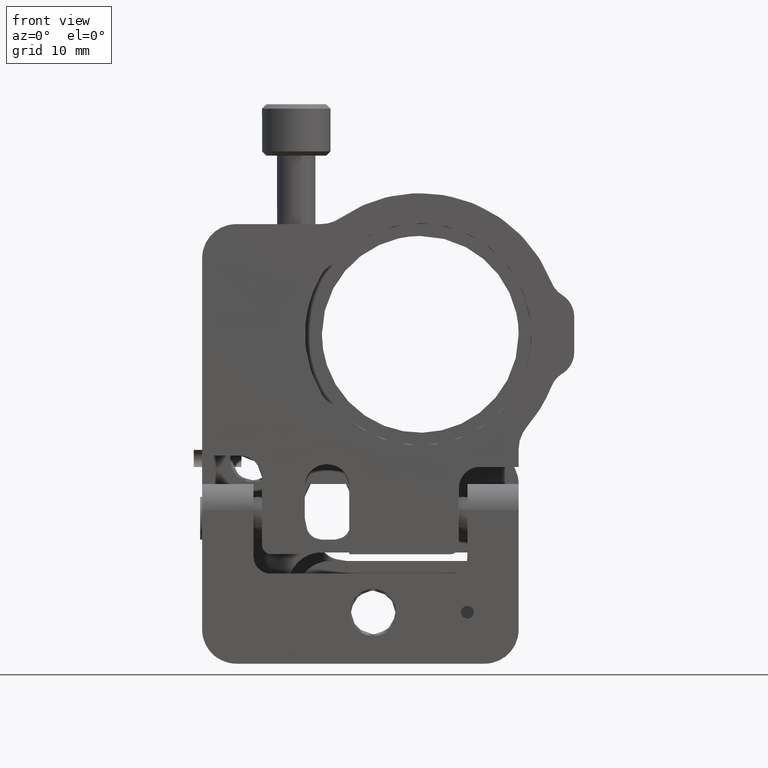
[diagram: clean part render]
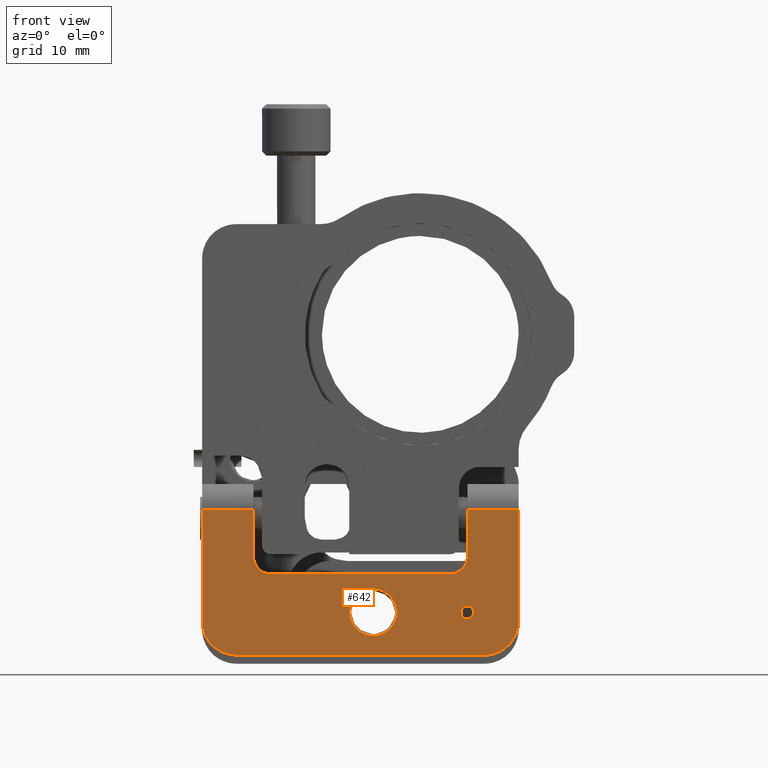
[diagram: same view with one face highlighted and labeled with its STEP entity id]
A machine part, front view. The second image highlights one B-rep face of the part: STEP entity #642.
In plain terms, the highlighted face is a freeform B-spline surface patch.
Its self-contained STEP definition (entity closure, byte-faithful):
#434=FACE_BOUND('',#1576,.T.);
#435=FACE_BOUND('',#1577,.T.);
#642=ADVANCED_FACE('',(#1089,#434,#435),#15901,.T.);
#1089=FACE_OUTER_BOUND('',#1575,.T.);
#1575=EDGE_LOOP('',(#2898,#2899,#2900,#2901,#2902,#2903,#2904,#2905,#2906,
#2907,#2908,#2909));
#1576=EDGE_LOOP('',(#2910,#2911));
#1577=EDGE_LOOP('',(#2912,#2913));
#2898=ORIENTED_EDGE('',*,*,#12954,.F.);
#2899=ORIENTED_EDGE('',*,*,#12952,.F.);
#2900=ORIENTED_EDGE('',*,*,#13014,.F.);
#2901=ORIENTED_EDGE('',*,*,#13016,.F.);
#2902=ORIENTED_EDGE('',*,*,#13011,.F.);
#2903=ORIENTED_EDGE('',*,*,#13017,.F.);
#2904=ORIENTED_EDGE('',*,*,#12854,.F.);
#2905=ORIENTED_EDGE('',*,*,#12988,.F.);
#2906=ORIENTED_EDGE('',*,*,#12960,.F.);
#2907=ORIENTED_EDGE('',*,*,#12987,.F.);
#2908=ORIENTED_EDGE('',*,*,#13021,.F.);
#2909=ORIENTED_EDGE('',*,*,#13018,.F.);
#2910=ORIENTED_EDGE('',*,*,#12750,.F.);
#2911=ORIENTED_EDGE('',*,*,#12748,.F.);
#2912=ORIENTED_EDGE('',*,*,#12906,.F.);
#2913=ORIENTED_EDGE('',*,*,#12903,.F.);
#4734=PCURVE('',#16041,#7108);
#4736=PCURVE('',#16042,#7110);
#4871=PCURVE('',#15877,#7245);
#4974=PCURVE('',#16069,#7348);
#4978=PCURVE('',#16070,#7352);
#5052=PCURVE('',#16078,#7426);
#5057=PCURVE('',#15888,#7431);
#5065=PCURVE('',#15889,#7439);
#5134=PCURVE('',#16081,#7508);
#5138=PCURVE('',#16082,#7512);
#5205=PCURVE('',#15895,#7579);
#5214=PCURVE('',#15896,#7588);
#5219=PCURVE('',#16091,#7593);
#5225=PCURVE('',#16092,#7599);
#5227=PCURVE('',#16093,#7601);
#5235=PCURVE('',#15897,#7609);
#5272=PCURVE('',#15901,#7646);
#5273=PCURVE('',#15901,#7647);
#5274=PCURVE('',#15901,#7648);
#5275=PCURVE('',#15901,#7649);
#5276=PCURVE('',#15901,#7650);
#5277=PCURVE('',#15901,#7651);
#5278=PCURVE('',#15901,#7652);
#5279=PCURVE('',#15901,#7653);
#5280=PCURVE('',#15901,#7654);
#5281=PCURVE('',#15901,#7655);
#5282=PCURVE('',#15901,#7656);
#5283=PCURVE('',#15901,#7657);
#5284=PCURVE('',#15901,#7658);
#5285=PCURVE('',#15901,#7659);
#5286=PCURVE('',#15901,#7660);
#5287=PCURVE('',#15901,#7661);
#7108=DEFINITIONAL_REPRESENTATION('',(#9452),#34671);
#7110=DEFINITIONAL_REPRESENTATION('',(#9454),#34671);
#7245=DEFINITIONAL_REPRESENTATION('',(#9625),#34671);
#7348=DEFINITIONAL_REPRESENTATION('',(#9735),#34671);
#7352=DEFINITIONAL_REPRESENTATION('',(#9740),#34671);
#7426=DEFINITIONAL_REPRESENTATION('',(#9812),#34671);
#7431=DEFINITIONAL_REPRESENTATION('',(#9818),#34671);
#7439=DEFINITIONAL_REPRESENTATION('',(#9826),#34671);
#7508=DEFINITIONAL_REPRESENTATION('',(#9871),#34671);
#7512=DEFINITIONAL_REPRESENTATION('',(#9875),#34671);
#7579=DEFINITIONAL_REPRESENTATION('',(#9932),#34671);
#7588=DEFINITIONAL_REPRESENTATION('',(#9942),#34671);
#7593=DEFINITIONAL_REPRESENTATION('',(#9945),#34671);
#7599=DEFINITIONAL_REPRESENTATION('',(#9952),#34671);
#7601=DEFINITIONAL_REPRESENTATION('',(#9954),#34671);
#7609=DEFINITIONAL_REPRESENTATION('',(#9963),#34671);
#7646=DEFINITIONAL_REPRESENTATION('',(#10002),#34671);
#7647=DEFINITIONAL_REPRESENTATION('',(#14260),#34671);
#7648=DEFINITIONAL_REPRESENTATION('',(#10003),#34671);
#7649=DEFINITIONAL_REPRESENTATION('',(#14261),#34671);
#7650=DEFINITIONAL_REPRESENTATION('',(#10004),#34671);
#7651=DEFINITIONAL_REPRESENTATION('',(#10005),#34671);
#7652=DEFINITIONAL_REPRESENTATION('',(#10006),#34671);
#7653=DEFINITIONAL_REPRESENTATION('',(#14262),#34671);
#7654=DEFINITIONAL_REPRESENTATION('',(#10007),#34671);
#7655=DEFINITIONAL_REPRESENTATION('',(#14263),#34671);
#7656=DEFINITIONAL_REPRESENTATION('',(#10008),#34671);
#7657=DEFINITIONAL_REPRESENTATION('',(#10009),#34671);
#7658=DEFINITIONAL_REPRESENTATION('',(#14264),#34671);
#7659=DEFINITIONAL_REPRESENTATION('',(#14265),#34671);
#7660=DEFINITIONAL_REPRESENTATION('',(#14266),#34671);
#7661=DEFINITIONAL_REPRESENTATION('',(#14267),#34671);
#9452=B_SPLINE_CURVE_WITH_KNOTS('',1,(#21227,#21228),.UNSPECIFIED.,.F.,
 .F.,(2,2),(0.,2.35619449019234),.UNSPECIFIED.);
#9454=B_SPLINE_CURVE_WITH_KNOTS('',1,(#21238,#21239),.UNSPECIFIED.,.F.,
 .F.,(2,2),(2.35619449019234,4.71238898038469),.UNSPECIFIED.);
#9624=B_SPLINE_CURVE_WITH_KNOTS('',1,(#21976,#21977),.UNSPECIFIED.,.F.,
 .F.,(2,2),(0.,13.),.UNSPECIFIED.);
#9625=B_SPLINE_CURVE_WITH_KNOTS('',1,(#21978,#21979),.UNSPECIFIED.,.F.,
 .F.,(2,2),(0.,13.),.UNSPECIFIED.);
#9735=B_SPLINE_CURVE_WITH_KNOTS('',1,(#22547,#22548),.UNSPECIFIED.,.F.,
 .F.,(2,2),(0.,8.63937979737193),.UNSPECIFIED.);
#9740=B_SPLINE_CURVE_WITH_KNOTS('',1,(#22602,#22603),.UNSPECIFIED.,.F.,
 .F.,(2,2),(8.63937979737193,17.2787595947439),.UNSPECIFIED.);
#9812=B_SPLINE_CURVE_WITH_KNOTS('',1,(#22962,#22963),.UNSPECIFIED.,.F.,
 .F.,(2,2),(0.,3.14159265358979),.UNSPECIFIED.);
#9817=B_SPLINE_CURVE_WITH_KNOTS('',1,(#22974,#22975),.UNSPECIFIED.,.F.,
 .F.,(2,2),(0.,5.49999999999997),.UNSPECIFIED.);
#9818=B_SPLINE_CURVE_WITH_KNOTS('',1,(#22976,#22977),.UNSPECIFIED.,.F.,
 .F.,(2,2),(0.,5.49999999999997),.UNSPECIFIED.);
#9825=B_SPLINE_CURVE_WITH_KNOTS('',1,(#23016,#23017),.UNSPECIFIED.,.F.,
 .F.,(2,2),(0.,28.9999999999997),.UNSPECIFIED.);
#9826=B_SPLINE_CURVE_WITH_KNOTS('',1,(#23018,#23019),.UNSPECIFIED.,.F.,
 .F.,(2,2),(0.,28.9999999999997),.UNSPECIFIED.);
#9871=B_SPLINE_CURVE_WITH_KNOTS('',1,(#23278,#23279),.UNSPECIFIED.,.F.,
 .F.,(2,2),(0.,6.28318530717959),.UNSPECIFIED.);
#9875=B_SPLINE_CURVE_WITH_KNOTS('',1,(#23289,#23290),.UNSPECIFIED.,.F.,
 .F.,(2,2),(0.,6.28318530717959),.UNSPECIFIED.);
#9931=B_SPLINE_CURVE_WITH_KNOTS('',1,(#23568,#23569),.UNSPECIFIED.,.F.,
 .F.,(2,2),(0.,5.49999999999996),.UNSPECIFIED.);
#9932=B_SPLINE_CURVE_WITH_KNOTS('',1,(#23570,#23571),.UNSPECIFIED.,.F.,
 .F.,(2,2),(0.,5.49999999999996),.UNSPECIFIED.);
#9941=B_SPLINE_CURVE_WITH_KNOTS('',1,(#23598,#23599),.UNSPECIFIED.,.F.,
 .F.,(2,2),(0.,20.9999999999997),.UNSPECIFIED.);
#9942=B_SPLINE_CURVE_WITH_KNOTS('',1,(#23600,#23601),.UNSPECIFIED.,.F.,
 .F.,(2,2),(0.,20.9999999999997),.UNSPECIFIED.);
#9945=B_SPLINE_CURVE_WITH_KNOTS('',1,(#23624,#23625),.UNSPECIFIED.,.F.,
 .F.,(2,2),(0.,3.14159265358979),.UNSPECIFIED.);
#9951=B_SPLINE_CURVE_WITH_KNOTS('',1,(#23636,#23637),.UNSPECIFIED.,.F.,
 .F.,(2,2),(-6.,0.),.UNSPECIFIED.);
#9952=B_SPLINE_CURVE_WITH_KNOTS('',1,(#23638,#23639),.UNSPECIFIED.,.F.,
 .F.,(2,2),(-6.,0.),.UNSPECIFIED.);
#9954=B_SPLINE_CURVE_WITH_KNOTS('',1,(#23644,#23645),.UNSPECIFIED.,.F.,
 .F.,(2,2),(-6.,0.),.UNSPECIFIED.);
#9962=B_SPLINE_CURVE_WITH_KNOTS('',1,(#23666,#23667),.UNSPECIFIED.,.F.,
 .F.,(2,2),(0.,13.),.UNSPECIFIED.);
#9963=B_SPLINE_CURVE_WITH_KNOTS('',1,(#23668,#23669),.UNSPECIFIED.,.F.,
 .F.,(2,2),(0.,13.),.UNSPECIFIED.);
#10002=B_SPLINE_CURVE_WITH_KNOTS('',1,(#23760,#23761),.UNSPECIFIED.,.F.,
 .F.,(2,2),(0.,5.49999999999997),.UNSPECIFIED.);
#10003=B_SPLINE_CURVE_WITH_KNOTS('',1,(#23765,#23766),.UNSPECIFIED.,.F.,
 .F.,(2,2),(0.,20.9999999999997),.UNSPECIFIED.);
#10004=B_SPLINE_CURVE_WITH_KNOTS('',1,(#23770,#23771),.UNSPECIFIED.,.F.,
 .F.,(2,2),(0.,5.49999999999996),.UNSPECIFIED.);
#10005=B_SPLINE_CURVE_WITH_KNOTS('',1,(#23772,#23773),.UNSPECIFIED.,.F.,
 .F.,(2,2),(-6.,0.),.UNSPECIFIED.);
#10006=B_SPLINE_CURVE_WITH_KNOTS('',1,(#23774,#23775),.UNSPECIFIED.,.F.,
 .F.,(2,2),(0.,13.),.UNSPECIFIED.);
#10007=B_SPLINE_CURVE_WITH_KNOTS('',1,(#23779,#23780),.UNSPECIFIED.,.F.,
 .F.,(2,2),(0.,28.9999999999997),.UNSPECIFIED.);
#10008=B_SPLINE_CURVE_WITH_KNOTS('',1,(#23784,#23785),.UNSPECIFIED.,.F.,
 .F.,(2,2),(0.,13.),.UNSPECIFIED.);
#10009=B_SPLINE_CURVE_WITH_KNOTS('',1,(#23786,#23787),.UNSPECIFIED.,.F.,
 .F.,(2,2),(-6.,0.),.UNSPECIFIED.);
#11534=SURFACE_CURVE('',#13992,(#4734,#5285),.PCURVE_S1.);
#11536=SURFACE_CURVE('',#13994,(#4736,#5284),.PCURVE_S1.);
#11640=SURFACE_CURVE('',#9624,(#4871,#5278),.PCURVE_S1.);
#11689=SURFACE_CURVE('',#14104,(#4974,#5287),.PCURVE_S1.);
#11692=SURFACE_CURVE('',#14106,(#4978,#5286),.PCURVE_S1.);
#11738=SURFACE_CURVE('',#14154,(#5052,#5273),.PCURVE_S1.);
#11740=SURFACE_CURVE('',#9817,(#5057,#5272),.PCURVE_S1.);
#11746=SURFACE_CURVE('',#9825,(#5065,#5280),.PCURVE_S1.);
#11773=SURFACE_CURVE('',#14212,(#5134,#5281),.PCURVE_S1.);
#11774=SURFACE_CURVE('',#14213,(#5138,#5279),.PCURVE_S1.);
#11797=SURFACE_CURVE('',#9931,(#5205,#5276),.PCURVE_S1.);
#11800=SURFACE_CURVE('',#9941,(#5214,#5274),.PCURVE_S1.);
#11802=SURFACE_CURVE('',#14252,(#5219,#5275),.PCURVE_S1.);
#11803=SURFACE_CURVE('',#9951,(#5225,#5277),.PCURVE_S1.);
#11804=SURFACE_CURVE('',#14253,(#5227,#5283),.PCURVE_S1.);
#11807=SURFACE_CURVE('',#9962,(#5235,#5282),.PCURVE_S1.);
#12748=EDGE_CURVE('',#15188,#15189,#11534,.T.);
#12750=EDGE_CURVE('',#15189,#15188,#11536,.T.);
#12854=EDGE_CURVE('',#15272,#15273,#11640,.T.);
#12903=EDGE_CURVE('',#15303,#15304,#11689,.T.);
#12906=EDGE_CURVE('',#15304,#15303,#11692,.T.);
#12952=EDGE_CURVE('',#15337,#15338,#11738,.T.);
#12954=EDGE_CURVE('',#15338,#15339,#11740,.T.);
#12960=EDGE_CURVE('',#15342,#15343,#11746,.T.);
#12987=EDGE_CURVE('',#15361,#15342,#11773,.T.);
#12988=EDGE_CURVE('',#15343,#15272,#11774,.T.);
#13011=EDGE_CURVE('',#15374,#15375,#11797,.T.);
#13014=EDGE_CURVE('',#15376,#15337,#11800,.T.);
#13016=EDGE_CURVE('',#15375,#15376,#11802,.T.);
#13017=EDGE_CURVE('',#15273,#15374,#11803,.T.);
#13018=EDGE_CURVE('',#15339,#15377,#11804,.T.);
#13021=EDGE_CURVE('',#15377,#15361,#11807,.T.);
#13992=(
BOUNDED_CURVE()
B_SPLINE_CURVE(2,(#21222,#21223,#21224,#21225,#21226),.UNSPECIFIED.,.F.,
 .F.)
B_SPLINE_CURVE_WITH_KNOTS((3,2,3),(0.,1.17809724509617,2.35619449019234),
 .UNSPECIFIED.)
CURVE()
GEOMETRIC_REPRESENTATION_ITEM()
RATIONAL_B_SPLINE_CURVE((1.,0.707106781186548,1.,0.707106781186548,1.))
REPRESENTATION_ITEM('')
);
#13994=(
BOUNDED_CURVE()
B_SPLINE_CURVE(2,(#21233,#21234,#21235,#21236,#21237),.UNSPECIFIED.,.F.,
 .F.)
B_SPLINE_CURVE_WITH_KNOTS((3,2,3),(2.35619449019234,3.53429173528852,4.71238898038469),
 .UNSPECIFIED.)
CURVE()
GEOMETRIC_REPRESENTATION_ITEM()
RATIONAL_B_SPLINE_CURVE((1.,0.707106781186548,1.,0.707106781186548,1.))
REPRESENTATION_ITEM('')
);
#14104=(
BOUNDED_CURVE()
B_SPLINE_CURVE(2,(#22542,#22543,#22544,#22545,#22546),.UNSPECIFIED.,.F.,
 .F.)
B_SPLINE_CURVE_WITH_KNOTS((3,2,3),(0.,4.31968989868596,8.63937979737193),
 .UNSPECIFIED.)
CURVE()
GEOMETRIC_REPRESENTATION_ITEM()
RATIONAL_B_SPLINE_CURVE((1.,0.707106781186548,1.,0.707106781186548,1.))
REPRESENTATION_ITEM('')
);
#14106=(
BOUNDED_CURVE()
B_SPLINE_CURVE(2,(#22597,#22598,#22599,#22600,#22601),.UNSPECIFIED.,.F.,
 .F.)
B_SPLINE_CURVE_WITH_KNOTS((3,2,3),(8.63937979737193,12.9590696960579,17.2787595947439),
 .UNSPECIFIED.)
CURVE()
GEOMETRIC_REPRESENTATION_ITEM()
RATIONAL_B_SPLINE_CURVE((1.,0.707106781186548,1.,0.707106781186548,1.))
REPRESENTATION_ITEM('')
);
#14154=(
BOUNDED_CURVE()
B_SPLINE_CURVE(2,(#22959,#22960,#22961),.UNSPECIFIED.,.F.,.F.)
B_SPLINE_CURVE_WITH_KNOTS((3,3),(0.,3.14159265358979),.UNSPECIFIED.)
CURVE()
GEOMETRIC_REPRESENTATION_ITEM()
RATIONAL_B_SPLINE_CURVE((1.,0.707106781186548,1.))
REPRESENTATION_ITEM('')
);
#14212=(
BOUNDED_CURVE()
B_SPLINE_CURVE(2,(#23275,#23276,#23277),.UNSPECIFIED.,.F.,.F.)
B_SPLINE_CURVE_WITH_KNOTS((3,3),(0.,6.28318530717959),.UNSPECIFIED.)
CURVE()
GEOMETRIC_REPRESENTATION_ITEM()
RATIONAL_B_SPLINE_CURVE((1.,0.707106781186548,1.))
REPRESENTATION_ITEM('')
);
#14213=(
BOUNDED_CURVE()
B_SPLINE_CURVE(2,(#23286,#23287,#23288),.UNSPECIFIED.,.F.,.F.)
B_SPLINE_CURVE_WITH_KNOTS((3,3),(0.,6.28318530717959),.UNSPECIFIED.)
CURVE()
GEOMETRIC_REPRESENTATION_ITEM()
RATIONAL_B_SPLINE_CURVE((1.,0.707106781186548,1.))
REPRESENTATION_ITEM('')
);
#14252=(
BOUNDED_CURVE()
B_SPLINE_CURVE(2,(#23621,#23622,#23623),.UNSPECIFIED.,.F.,.F.)
B_SPLINE_CURVE_WITH_KNOTS((3,3),(0.,3.14159265358979),.UNSPECIFIED.)
CURVE()
GEOMETRIC_REPRESENTATION_ITEM()
RATIONAL_B_SPLINE_CURVE((1.,0.707106781186548,1.))
REPRESENTATION_ITEM('')
);
#14253=(
BOUNDED_CURVE()
B_SPLINE_CURVE(1,(#23642,#23643),.UNSPECIFIED.,.F.,.F.)
B_SPLINE_CURVE_WITH_KNOTS((2,2),(-6.,0.),.UNSPECIFIED.)
CURVE()
GEOMETRIC_REPRESENTATION_ITEM()
RATIONAL_B_SPLINE_CURVE((1.,1.))
REPRESENTATION_ITEM('')
);
#14260=(
BOUNDED_CURVE()
B_SPLINE_CURVE(2,(#23762,#23763,#23764),.UNSPECIFIED.,.F.,.F.)
B_SPLINE_CURVE_WITH_KNOTS((3,3),(0.,3.14159265358979),.UNSPECIFIED.)
CURVE()
GEOMETRIC_REPRESENTATION_ITEM()
RATIONAL_B_SPLINE_CURVE((1.,0.707106781186548,1.))
REPRESENTATION_ITEM('')
);
#14261=(
BOUNDED_CURVE()
B_SPLINE_CURVE(2,(#23767,#23768,#23769),.UNSPECIFIED.,.F.,.F.)
B_SPLINE_CURVE_WITH_KNOTS((3,3),(0.,3.14159265358979),.UNSPECIFIED.)
CURVE()
GEOMETRIC_REPRESENTATION_ITEM()
RATIONAL_B_SPLINE_CURVE((1.,0.707106781186547,1.))
REPRESENTATION_ITEM('')
);
#14262=(
BOUNDED_CURVE()
B_SPLINE_CURVE(2,(#23776,#23777,#23778),.UNSPECIFIED.,.F.,.F.)
B_SPLINE_CURVE_WITH_KNOTS((3,3),(0.,6.28318530717959),.UNSPECIFIED.)
CURVE()
GEOMETRIC_REPRESENTATION_ITEM()
RATIONAL_B_SPLINE_CURVE((1.,0.707106781186546,1.))
REPRESENTATION_ITEM('')
);
#14263=(
BOUNDED_CURVE()
B_SPLINE_CURVE(2,(#23781,#23782,#23783),.UNSPECIFIED.,.F.,.F.)
B_SPLINE_CURVE_WITH_KNOTS((3,3),(0.,6.28318530717959),.UNSPECIFIED.)
CURVE()
GEOMETRIC_REPRESENTATION_ITEM()
RATIONAL_B_SPLINE_CURVE((1.,0.707106781186548,1.))
REPRESENTATION_ITEM('')
);
#14264=(
BOUNDED_CURVE()
B_SPLINE_CURVE(2,(#23788,#23789,#23790,#23791,#23792),.UNSPECIFIED.,.F.,
 .F.)
B_SPLINE_CURVE_WITH_KNOTS((3,2,3),(2.35619449019234,3.53429173528852,4.71238898038469),
 .UNSPECIFIED.)
CURVE()
GEOMETRIC_REPRESENTATION_ITEM()
RATIONAL_B_SPLINE_CURVE((1.,0.707106781186548,1.,0.707106781186548,1.))
REPRESENTATION_ITEM('')
);
#14265=(
BOUNDED_CURVE()
B_SPLINE_CURVE(2,(#23793,#23794,#23795,#23796,#23797),.UNSPECIFIED.,.F.,
 .F.)
B_SPLINE_CURVE_WITH_KNOTS((3,2,3),(0.,1.17809724509617,2.35619449019234),
 .UNSPECIFIED.)
CURVE()
GEOMETRIC_REPRESENTATION_ITEM()
RATIONAL_B_SPLINE_CURVE((1.,0.707106781186548,1.,0.707106781186548,1.))
REPRESENTATION_ITEM('')
);
#14266=(
BOUNDED_CURVE()
B_SPLINE_CURVE(2,(#23798,#23799,#23800,#23801,#23802),.UNSPECIFIED.,.F.,
 .F.)
B_SPLINE_CURVE_WITH_KNOTS((3,2,3),(8.63937979737193,12.9590696960579,17.2787595947439),
 .UNSPECIFIED.)
CURVE()
GEOMETRIC_REPRESENTATION_ITEM()
RATIONAL_B_SPLINE_CURVE((1.,0.707106781186548,1.,0.707106781186548,1.))
REPRESENTATION_ITEM('')
);
#14267=(
BOUNDED_CURVE()
B_SPLINE_CURVE(2,(#23803,#23804,#23805,#23806,#23807),.UNSPECIFIED.,.F.,
 .F.)
B_SPLINE_CURVE_WITH_KNOTS((3,2,3),(0.,4.31968989868597,8.63937979737193),
 .UNSPECIFIED.)
CURVE()
GEOMETRIC_REPRESENTATION_ITEM()
RATIONAL_B_SPLINE_CURVE((1.,0.707106781186548,1.,0.707106781186548,1.))
REPRESENTATION_ITEM('')
);
#15188=VERTEX_POINT('',#21021);
#15189=VERTEX_POINT('',#21022);
#15272=VERTEX_POINT('',#21105);
#15273=VERTEX_POINT('',#21106);
#15303=VERTEX_POINT('',#21136);
#15304=VERTEX_POINT('',#21137);
#15337=VERTEX_POINT('',#21170);
#15338=VERTEX_POINT('',#21171);
#15339=VERTEX_POINT('',#21172);
#15342=VERTEX_POINT('',#21175);
#15343=VERTEX_POINT('',#21176);
#15361=VERTEX_POINT('',#21194);
#15374=VERTEX_POINT('',#21207);
#15375=VERTEX_POINT('',#21208);
#15376=VERTEX_POINT('',#21209);
#15377=VERTEX_POINT('',#21210);
#15877=B_SPLINE_SURFACE_WITH_KNOTS('',1,1,((#20215,#20216),(#20217,#20218)),
 .UNSPECIFIED.,.F.,.F.,.F.,(2,2),(2,2),(3.5527136788005E-15,50.64),(0.,
29.04),.UNSPECIFIED.);
#15888=B_SPLINE_SURFACE_WITH_KNOTS('',1,1,((#20601,#20602),(#20603,#20604)),
 .UNSPECIFIED.,.F.,.F.,.F.,(2,2),(2,2),(2.99760216648792E-15,10.44),(-10.44,
1.11022302462516E-16),.UNSPECIFIED.);
#15889=B_SPLINE_SURFACE_WITH_KNOTS('',1,1,((#20605,#20606),(#20607,#20608)),
 .UNSPECIFIED.,.F.,.F.,.F.,(2,2),(2,2),(0.,19.44),(-35.0399999999997,-3.24185123190546E-14),
 .UNSPECIFIED.);
#15895=B_SPLINE_SURFACE_WITH_KNOTS('',1,1,((#20845,#20846),(#20847,#20848)),
 .UNSPECIFIED.,.F.,.F.,.F.,(2,2),(2,2),(-10.44,-3.99680288865056E-15),(0.,
10.44),.UNSPECIFIED.);
#15896=B_SPLINE_SURFACE_WITH_KNOTS('',1,1,((#20849,#20850),(#20851,#20852)),
 .UNSPECIFIED.,.F.,.F.,.F.,(2,2),(2,2),(-10.44,1.11022302462516E-16),(-25.4399999999997,
-3.5527136788005E-14),.UNSPECIFIED.);
#15897=B_SPLINE_SURFACE_WITH_KNOTS('',1,1,((#20907,#20908),(#20909,#20910)),
 .UNSPECIFIED.,.F.,.F.,.F.,(2,2),(2,2),(-19.44,-3.5527136788005E-15),(-19.44,
0.),.UNSPECIFIED.);
#15901=B_SPLINE_SURFACE_WITH_KNOTS('',1,1,((#20995,#20996),(#20997,#20998)),
 .UNSPECIFIED.,.F.,.F.,.F.,(2,2),(2,2),(4.39648317751562E-14,44.6399999999997),
(-3.10862446895044E-15,20.64),.UNSPECIFIED.);
#16041=(
BOUNDED_SURFACE()
B_SPLINE_SURFACE(1,2,((#19861,#19862,#19863,#19864,#19865,#19866,#19867,
#19868,#19869),(#19870,#19871,#19872,#19873,#19874,#19875,#19876,#19877,
#19878)),.UNSPECIFIED.,.F.,.F.,.F.)
B_SPLINE_SURFACE_WITH_KNOTS((2,2),(3,2,2,2,3),(0.,2.88),(0.,1.5707963267949,
3.14159265358979,4.71238898038469,6.28318530717959),.UNSPECIFIED.)
GEOMETRIC_REPRESENTATION_ITEM()
RATIONAL_B_SPLINE_SURFACE(((1.,0.707106781186548,1.,0.707106781186548,1.,
0.707106781186548,1.,0.707106781186548,1.),(1.,0.707106781186548,1.,0.707106781186548,
1.,0.707106781186548,1.,0.707106781186548,1.)))
REPRESENTATION_ITEM('')
SURFACE()
);
#16042=(
BOUNDED_SURFACE()
B_SPLINE_SURFACE(1,2,((#19879,#19880,#19881,#19882,#19883,#19884,#19885,
#19886,#19887),(#19888,#19889,#19890,#19891,#19892,#19893,#19894,#19895,
#19896)),.UNSPECIFIED.,.F.,.F.,.F.)
B_SPLINE_SURFACE_WITH_KNOTS((2,2),(3,2,2,2,3),(0.,2.88),(0.,1.5707963267949,
3.14159265358979,4.71238898038469,6.28318530717959),.UNSPECIFIED.)
GEOMETRIC_REPRESENTATION_ITEM()
RATIONAL_B_SPLINE_SURFACE(((1.,0.707106781186548,1.,0.707106781186548,1.,
0.707106781186548,1.,0.707106781186548,1.),(1.,0.707106781186548,1.,0.707106781186548,
1.,0.707106781186548,1.,0.707106781186548,1.)))
REPRESENTATION_ITEM('')
SURFACE()
);
#16069=(
BOUNDED_SURFACE()
B_SPLINE_SURFACE(1,2,((#20397,#20398,#20399,#20400,#20401,#20402,#20403,
#20404,#20405),(#20406,#20407,#20408,#20409,#20410,#20411,#20412,#20413,
#20414)),.UNSPECIFIED.,.F.,.F.,.F.)
B_SPLINE_SURFACE_WITH_KNOTS((2,2),(3,2,2,2,3),(0.,7.68),(0.,1.5707963267949,
3.14159265358979,4.71238898038469,6.28318530717959),.UNSPECIFIED.)
GEOMETRIC_REPRESENTATION_ITEM()
RATIONAL_B_SPLINE_SURFACE(((1.,0.707106781186548,1.,0.707106781186548,1.,
0.707106781186548,1.,0.707106781186548,1.),(1.,0.707106781186548,1.,0.707106781186548,
1.,0.707106781186548,1.,0.707106781186548,1.)))
REPRESENTATION_ITEM('')
SURFACE()
);
#16070=(
BOUNDED_SURFACE()
B_SPLINE_SURFACE(1,2,((#20415,#20416,#20417,#20418,#20419,#20420,#20421,
#20422,#20423),(#20424,#20425,#20426,#20427,#20428,#20429,#20430,#20431,
#20432)),.UNSPECIFIED.,.F.,.F.,.F.)
B_SPLINE_SURFACE_WITH_KNOTS((2,2),(3,2,2,2,3),(0.,7.68),(0.,1.5707963267949,
3.14159265358979,4.71238898038469,6.28318530717959),.UNSPECIFIED.)
GEOMETRIC_REPRESENTATION_ITEM()
RATIONAL_B_SPLINE_SURFACE(((1.,0.707106781186548,1.,0.707106781186548,1.,
0.707106781186548,1.,0.707106781186548,1.),(1.,0.707106781186548,1.,0.707106781186548,
1.,0.707106781186548,1.,0.707106781186548,1.)))
REPRESENTATION_ITEM('')
SURFACE()
);
#16078=(
BOUNDED_SURFACE()
B_SPLINE_SURFACE(1,2,((#20583,#20584,#20585,#20586,#20587,#20588,#20589,
#20590,#20591),(#20592,#20593,#20594,#20595,#20596,#20597,#20598,#20599,
#20600)),.UNSPECIFIED.,.F.,.F.,.F.)
B_SPLINE_SURFACE_WITH_KNOTS((2,2),(3,2,2,2,3),(0.,7.68),(0.,1.5707963267949,
3.14159265358979,4.71238898038469,6.28318530717959),.UNSPECIFIED.)
GEOMETRIC_REPRESENTATION_ITEM()
RATIONAL_B_SPLINE_SURFACE(((1.,0.707106781186548,1.,0.707106781186548,1.,
0.707106781186548,1.,0.707106781186548,1.),(1.,0.707106781186548,1.,0.707106781186548,
1.,0.707106781186548,1.,0.707106781186548,1.)))
REPRESENTATION_ITEM('')
SURFACE()
);
#16081=(
BOUNDED_SURFACE()
B_SPLINE_SURFACE(2,1,((#20657,#20658),(#20659,#20660),(#20661,#20662),(#20663,
#20664),(#20665,#20666),(#20667,#20668),(#20669,#20670),(#20671,#20672),
(#20673,#20674)),.UNSPECIFIED.,.T.,.F.,.F.)
B_SPLINE_SURFACE_WITH_KNOTS((3,2,2,2,3),(2,2),(0.,1.5707963267949,3.14159265358979,
4.71238898038469,6.28318530717959),(0.,7.68),.UNSPECIFIED.)
GEOMETRIC_REPRESENTATION_ITEM()
RATIONAL_B_SPLINE_SURFACE(((1.,1.),(0.707106781186548,0.707106781186548),
(1.,1.),(0.707106781186548,0.707106781186548),(1.,1.),(0.707106781186548,
0.707106781186548),(1.,1.),(0.707106781186548,0.707106781186548),(1.,1.)))
REPRESENTATION_ITEM('')
SURFACE()
);
#16082=(
BOUNDED_SURFACE()
B_SPLINE_SURFACE(2,1,((#20675,#20676),(#20677,#20678),(#20679,#20680),(#20681,
#20682),(#20683,#20684),(#20685,#20686),(#20687,#20688),(#20689,#20690),
(#20691,#20692)),.UNSPECIFIED.,.T.,.F.,.F.)
B_SPLINE_SURFACE_WITH_KNOTS((3,2,2,2,3),(2,2),(0.,1.5707963267949,3.14159265358979,
4.71238898038469,6.28318530717959),(0.,19.44),.UNSPECIFIED.)
GEOMETRIC_REPRESENTATION_ITEM()
RATIONAL_B_SPLINE_SURFACE(((1.,1.),(0.707106781186548,0.707106781186548),
(1.,1.),(0.707106781186548,0.707106781186548),(1.,1.),(0.707106781186548,
0.707106781186548),(1.,1.),(0.707106781186548,0.707106781186548),(1.,1.)))
REPRESENTATION_ITEM('')
SURFACE()
);
#16091=(
BOUNDED_SURFACE()
B_SPLINE_SURFACE(1,2,((#20853,#20854,#20855,#20856,#20857,#20858,#20859,
#20860,#20861),(#20862,#20863,#20864,#20865,#20866,#20867,#20868,#20869,
#20870)),.UNSPECIFIED.,.F.,.F.,.F.)
B_SPLINE_SURFACE_WITH_KNOTS((2,2),(3,2,2,2,3),(0.,10.44),(0.,1.5707963267949,
3.14159265358979,4.71238898038469,6.28318530717959),.UNSPECIFIED.)
GEOMETRIC_REPRESENTATION_ITEM()
RATIONAL_B_SPLINE_SURFACE(((1.,0.707106781186548,1.,0.707106781186548,1.,
0.707106781186548,1.,0.707106781186548,1.),(1.,0.707106781186548,1.,0.707106781186548,
1.,0.707106781186548,1.,0.707106781186548,1.)))
REPRESENTATION_ITEM('')
SURFACE()
);
#16092=(
BOUNDED_SURFACE()
B_SPLINE_SURFACE(2,1,((#20871,#20872),(#20873,#20874),(#20875,#20876),(#20877,
#20878),(#20879,#20880),(#20881,#20882),(#20883,#20884),(#20885,#20886),
(#20887,#20888)),.UNSPECIFIED.,.T.,.F.,.F.)
B_SPLINE_SURFACE_WITH_KNOTS((3,2,2,2,3),(2,2),(0.,1.5707963267949,3.14159265358979,
4.71238898038469,6.28318530717959),(0.,7.43999999999997),.UNSPECIFIED.)
GEOMETRIC_REPRESENTATION_ITEM()
RATIONAL_B_SPLINE_SURFACE(((1.,1.),(0.707106781186548,0.707106781186548),
(1.,1.),(0.707106781186548,0.707106781186548),(1.,1.),(0.707106781186548,
0.707106781186548),(1.,1.),(0.707106781186548,0.707106781186548),(1.,1.)))
REPRESENTATION_ITEM('')
SURFACE()
);
#16093=(
BOUNDED_SURFACE()
B_SPLINE_SURFACE(2,1,((#20889,#20890),(#20891,#20892),(#20893,#20894),(#20895,
#20896),(#20897,#20898),(#20899,#20900),(#20901,#20902),(#20903,#20904),
(#20905,#20906)),.UNSPECIFIED.,.T.,.F.,.F.)
B_SPLINE_SURFACE_WITH_KNOTS((3,2,2,2,3),(2,2),(0.,1.5707963267949,3.14159265358979,
4.71238898038469,6.28318530717959),(0.,7.44),.UNSPECIFIED.)
GEOMETRIC_REPRESENTATION_ITEM()
RATIONAL_B_SPLINE_SURFACE(((1.,1.),(0.707106781186548,0.707106781186548),
(1.,1.),(0.707106781186548,0.707106781186548),(1.,1.),(0.707106781186548,
0.707106781186548),(1.,1.),(0.707106781186548,0.707106781186548),(1.,1.)))
REPRESENTATION_ITEM('')
SURFACE()
);
#19861=CARTESIAN_POINT('',(82.8964644282153,-1.47474792027716,-7.45999999999999));
#19862=CARTESIAN_POINT('',(82.8964644282153,-0.72474792027716,-7.45999999999999));
#19863=CARTESIAN_POINT('',(83.6464644282153,-0.72474792027716,-7.45999999999999));
#19864=CARTESIAN_POINT('',(84.3964644282153,-0.72474792027716,-7.45999999999999));
#19865=CARTESIAN_POINT('',(84.3964644282153,-1.47474792027716,-7.45999999999999));
#19866=CARTESIAN_POINT('',(84.3964644282153,-2.22474792027716,-7.45999999999999));
#19867=CARTESIAN_POINT('',(83.6464644282153,-2.22474792027716,-7.45999999999999));
#19868=CARTESIAN_POINT('',(82.8964644282153,-2.22474792027716,-7.45999999999999));
#19869=CARTESIAN_POINT('',(82.8964644282153,-1.47474792027716,-7.45999999999999));
#19870=CARTESIAN_POINT('',(82.8964644282153,-1.47474792027716,-10.34));
#19871=CARTESIAN_POINT('',(82.8964644282153,-0.72474792027716,-10.34));
#19872=CARTESIAN_POINT('',(83.6464644282153,-0.72474792027716,-10.34));
#19873=CARTESIAN_POINT('',(84.3964644282153,-0.72474792027716,-10.34));
#19874=CARTESIAN_POINT('',(84.3964644282153,-1.47474792027716,-10.34));
#19875=CARTESIAN_POINT('',(84.3964644282153,-2.22474792027716,-10.34));
#19876=CARTESIAN_POINT('',(83.6464644282153,-2.22474792027716,-10.34));
#19877=CARTESIAN_POINT('',(82.8964644282153,-2.22474792027716,-10.34));
#19878=CARTESIAN_POINT('',(82.8964644282153,-1.47474792027716,-10.34));
#19879=CARTESIAN_POINT('',(82.8964644282153,-1.47474792027716,-7.45999999999999));
#19880=CARTESIAN_POINT('',(82.8964644282153,-0.72474792027716,-7.45999999999999));
#19881=CARTESIAN_POINT('',(83.6464644282153,-0.72474792027716,-7.45999999999999));
#19882=CARTESIAN_POINT('',(84.3964644282153,-0.72474792027716,-7.45999999999999));
#19883=CARTESIAN_POINT('',(84.3964644282153,-1.47474792027716,-7.45999999999999));
#19884=CARTESIAN_POINT('',(84.3964644282153,-2.22474792027716,-7.45999999999999));
#19885=CARTESIAN_POINT('',(83.6464644282153,-2.22474792027716,-7.45999999999999));
#19886=CARTESIAN_POINT('',(82.8964644282153,-2.22474792027716,-7.45999999999999));
#19887=CARTESIAN_POINT('',(82.8964644282153,-1.47474792027716,-7.45999999999999));
#19888=CARTESIAN_POINT('',(82.8964644282153,-1.47474792027716,-10.34));
#19889=CARTESIAN_POINT('',(82.8964644282153,-0.72474792027716,-10.34));
#19890=CARTESIAN_POINT('',(83.6464644282153,-0.72474792027716,-10.34));
#19891=CARTESIAN_POINT('',(84.3964644282153,-0.72474792027716,-10.34));
#19892=CARTESIAN_POINT('',(84.3964644282153,-1.47474792027716,-10.34));
#19893=CARTESIAN_POINT('',(84.3964644282153,-2.22474792027716,-10.34));
#19894=CARTESIAN_POINT('',(83.6464644282153,-2.22474792027716,-10.34));
#19895=CARTESIAN_POINT('',(82.8964644282153,-2.22474792027716,-10.34));
#19896=CARTESIAN_POINT('',(82.8964644282153,-1.47474792027716,-10.34));
#20215=CARTESIAN_POINT('',(114.646464428215,-6.79474792027717,-12.52));
#20216=CARTESIAN_POINT('',(114.646464428215,-6.79474792027717,16.52));
#20217=CARTESIAN_POINT('',(114.646464428215,43.8452520797228,-12.52));
#20218=CARTESIAN_POINT('',(114.646464428215,43.8452520797228,16.52));
#20397=CARTESIAN_POINT('',(91.8964644282153,-1.47474792027716,-3.06));
#20398=CARTESIAN_POINT('',(91.8964644282153,1.27525207972284,-3.06));
#20399=CARTESIAN_POINT('',(94.6464644282153,1.27525207972284,-3.06));
#20400=CARTESIAN_POINT('',(97.3964644282153,1.27525207972284,-3.06));
#20401=CARTESIAN_POINT('',(97.3964644282153,-1.47474792027716,-3.06));
#20402=CARTESIAN_POINT('',(97.3964644282153,-4.22474792027716,-3.06));
#20403=CARTESIAN_POINT('',(94.6464644282153,-4.22474792027716,-3.06));
#20404=CARTESIAN_POINT('',(91.8964644282153,-4.22474792027716,-3.06));
#20405=CARTESIAN_POINT('',(91.8964644282153,-1.47474792027716,-3.06));
#20406=CARTESIAN_POINT('',(91.8964644282153,-1.47474792027716,-10.74));
#20407=CARTESIAN_POINT('',(91.8964644282153,1.27525207972284,-10.74));
#20408=CARTESIAN_POINT('',(94.6464644282153,1.27525207972284,-10.74));
#20409=CARTESIAN_POINT('',(97.3964644282153,1.27525207972284,-10.74));
#20410=CARTESIAN_POINT('',(97.3964644282153,-1.47474792027716,-10.74));
#20411=CARTESIAN_POINT('',(97.3964644282153,-4.22474792027716,-10.74));
#20412=CARTESIAN_POINT('',(94.6464644282153,-4.22474792027716,-10.74));
#20413=CARTESIAN_POINT('',(91.8964644282153,-4.22474792027716,-10.74));
#20414=CARTESIAN_POINT('',(91.8964644282153,-1.47474792027716,-10.74));
#20415=CARTESIAN_POINT('',(91.8964644282153,-1.47474792027716,-3.06));
#20416=CARTESIAN_POINT('',(91.8964644282153,1.27525207972284,-3.06));
#20417=CARTESIAN_POINT('',(94.6464644282153,1.27525207972284,-3.06));
#20418=CARTESIAN_POINT('',(97.3964644282153,1.27525207972284,-3.06));
#20419=CARTESIAN_POINT('',(97.3964644282153,-1.47474792027716,-3.06));
#20420=CARTESIAN_POINT('',(97.3964644282153,-4.22474792027716,-3.06));
#20421=CARTESIAN_POINT('',(94.6464644282153,-4.22474792027716,-3.06));
#20422=CARTESIAN_POINT('',(91.8964644282153,-4.22474792027716,-3.06));
#20423=CARTESIAN_POINT('',(91.8964644282153,-1.47474792027716,-3.06));
#20424=CARTESIAN_POINT('',(91.8964644282153,-1.47474792027716,-10.74));
#20425=CARTESIAN_POINT('',(91.8964644282153,1.27525207972284,-10.74));
#20426=CARTESIAN_POINT('',(94.6464644282153,1.27525207972284,-10.74));
#20427=CARTESIAN_POINT('',(97.3964644282153,1.27525207972284,-10.74));
#20428=CARTESIAN_POINT('',(97.3964644282153,-1.47474792027716,-10.74));
#20429=CARTESIAN_POINT('',(97.3964644282153,-4.22474792027716,-10.74));
#20430=CARTESIAN_POINT('',(94.6464644282153,-4.22474792027716,-10.74));
#20431=CARTESIAN_POINT('',(91.8964644282153,-4.22474792027716,-10.74));
#20432=CARTESIAN_POINT('',(91.8964644282153,-1.47474792027716,-10.74));
#20583=CARTESIAN_POINT('',(85.6464644282153,7.02525207972283,-3.06));
#20584=CARTESIAN_POINT('',(87.6464644282153,7.02525207972283,-3.06));
#20585=CARTESIAN_POINT('',(87.6464644282153,5.02525207972283,-3.06));
#20586=CARTESIAN_POINT('',(87.6464644282153,3.02525207972283,-3.06));
#20587=CARTESIAN_POINT('',(85.6464644282153,3.02525207972283,-3.06));
#20588=CARTESIAN_POINT('',(83.6464644282153,3.02525207972283,-3.06));
#20589=CARTESIAN_POINT('',(83.6464644282153,5.02525207972283,-3.06));
#20590=CARTESIAN_POINT('',(83.6464644282153,7.02525207972283,-3.06));
#20591=CARTESIAN_POINT('',(85.6464644282153,7.02525207972283,-3.06));
#20592=CARTESIAN_POINT('',(85.6464644282153,7.02525207972283,-10.74));
#20593=CARTESIAN_POINT('',(87.6464644282153,7.02525207972283,-10.74));
#20594=CARTESIAN_POINT('',(87.6464644282153,5.02525207972283,-10.74));
#20595=CARTESIAN_POINT('',(87.6464644282153,3.02525207972283,-10.74));
#20596=CARTESIAN_POINT('',(85.6464644282153,3.02525207972283,-10.74));
#20597=CARTESIAN_POINT('',(83.6464644282153,3.02525207972283,-10.74));
#20598=CARTESIAN_POINT('',(83.6464644282153,5.02525207972283,-10.74));
#20599=CARTESIAN_POINT('',(83.6464644282153,7.02525207972283,-10.74));
#20600=CARTESIAN_POINT('',(85.6464644282153,7.02525207972283,-10.74));
#20601=CARTESIAN_POINT('',(83.6464644282153,4.05525207972283,-10.97));
#20602=CARTESIAN_POINT('',(83.6464644282153,4.05525207972283,-0.529999999999989));
#20603=CARTESIAN_POINT('',(83.6464644282153,14.4952520797228,-10.97));
#20604=CARTESIAN_POINT('',(83.6464644282153,14.4952520797228,-0.529999999999989));
#20605=CARTESIAN_POINT('',(78.6264644282153,-6.47474792027716,7.72));
#20606=CARTESIAN_POINT('',(113.666464428215,-6.47474792027716,7.72));
#20607=CARTESIAN_POINT('',(78.6264644282153,-6.47474792027716,-11.72));
#20608=CARTESIAN_POINT('',(113.666464428215,-6.47474792027716,-11.72));
#20657=CARTESIAN_POINT('',(81.6464644282153,1.52525207972284,-3.06));
#20658=CARTESIAN_POINT('',(81.6464644282153,1.52525207972284,-10.74));
#20659=CARTESIAN_POINT('',(85.6464644282153,1.52525207972284,-3.06));
#20660=CARTESIAN_POINT('',(85.6464644282153,1.52525207972284,-10.74));
#20661=CARTESIAN_POINT('',(85.6464644282153,-2.47474792027716,-3.06));
#20662=CARTESIAN_POINT('',(85.6464644282153,-2.47474792027716,-10.74));
#20663=CARTESIAN_POINT('',(85.6464644282153,-6.47474792027716,-3.06));
#20664=CARTESIAN_POINT('',(85.6464644282153,-6.47474792027716,-10.74));
#20665=CARTESIAN_POINT('',(81.6464644282153,-6.47474792027716,-3.06));
#20666=CARTESIAN_POINT('',(81.6464644282153,-6.47474792027716,-10.74));
#20667=CARTESIAN_POINT('',(77.6464644282153,-6.47474792027716,-3.06));
#20668=CARTESIAN_POINT('',(77.6464644282153,-6.47474792027716,-10.74));
#20669=CARTESIAN_POINT('',(77.6464644282153,-2.47474792027716,-3.06));
#20670=CARTESIAN_POINT('',(77.6464644282153,-2.47474792027716,-10.74));
#20671=CARTESIAN_POINT('',(77.6464644282153,1.52525207972284,-3.06));
#20672=CARTESIAN_POINT('',(77.6464644282153,1.52525207972284,-10.74));
#20673=CARTESIAN_POINT('',(81.6464644282153,1.52525207972284,-3.06));
#20674=CARTESIAN_POINT('',(81.6464644282153,1.52525207972284,-10.74));
#20675=CARTESIAN_POINT('',(110.646464428215,1.52525207972283,7.72));
#20676=CARTESIAN_POINT('',(110.646464428215,1.52525207972283,-11.72));
#20677=CARTESIAN_POINT('',(114.646464428215,1.52525207972283,7.72));
#20678=CARTESIAN_POINT('',(114.646464428215,1.52525207972283,-11.72));
#20679=CARTESIAN_POINT('',(114.646464428215,-2.47474792027717,7.72));
#20680=CARTESIAN_POINT('',(114.646464428215,-2.47474792027717,-11.72));
#20681=CARTESIAN_POINT('',(114.646464428215,-6.47474792027717,7.72));
#20682=CARTESIAN_POINT('',(114.646464428215,-6.47474792027717,-11.72));
#20683=CARTESIAN_POINT('',(110.646464428215,-6.47474792027717,7.72));
#20684=CARTESIAN_POINT('',(110.646464428215,-6.47474792027717,-11.72));
#20685=CARTESIAN_POINT('',(106.646464428215,-6.47474792027717,7.72));
#20686=CARTESIAN_POINT('',(106.646464428215,-6.47474792027717,-11.72));
#20687=CARTESIAN_POINT('',(106.646464428215,-2.47474792027717,7.72));
#20688=CARTESIAN_POINT('',(106.646464428215,-2.47474792027717,-11.72));
#20689=CARTESIAN_POINT('',(106.646464428215,1.52525207972283,7.72));
#20690=CARTESIAN_POINT('',(106.646464428215,1.52525207972283,-11.72));
#20691=CARTESIAN_POINT('',(110.646464428215,1.52525207972283,7.72));
#20692=CARTESIAN_POINT('',(110.646464428215,1.52525207972283,-11.72));
#20845=CARTESIAN_POINT('',(108.646464428215,14.4952520797228,-10.97));
#20846=CARTESIAN_POINT('',(108.646464428215,14.4952520797228,-0.529999999999989));
#20847=CARTESIAN_POINT('',(108.646464428215,4.05525207972284,-10.97));
#20848=CARTESIAN_POINT('',(108.646464428215,4.05525207972284,-0.529999999999989));
#20849=CARTESIAN_POINT('',(83.4264644282153,3.02525207972283,-10.97));
#20850=CARTESIAN_POINT('',(108.866464428215,3.02525207972283,-10.97));
#20851=CARTESIAN_POINT('',(83.4264644282153,3.02525207972283,-0.529999999999989));
#20852=CARTESIAN_POINT('',(108.866464428215,3.02525207972283,-0.529999999999989));
#20853=CARTESIAN_POINT('',(106.646464428215,7.02525207972284,-0.529999999999989));
#20854=CARTESIAN_POINT('',(108.646464428215,7.02525207972284,-0.529999999999989));
#20855=CARTESIAN_POINT('',(108.646464428215,5.02525207972284,-0.529999999999989));
#20856=CARTESIAN_POINT('',(108.646464428215,3.02525207972284,-0.529999999999989));
#20857=CARTESIAN_POINT('',(106.646464428215,3.02525207972284,-0.529999999999989));
#20858=CARTESIAN_POINT('',(104.646464428215,3.02525207972284,-0.529999999999989));
#20859=CARTESIAN_POINT('',(104.646464428215,5.02525207972284,-0.529999999999989));
#20860=CARTESIAN_POINT('',(104.646464428215,7.02525207972284,-0.529999999999989));
#20861=CARTESIAN_POINT('',(106.646464428215,7.02525207972284,-0.529999999999989));
#20862=CARTESIAN_POINT('',(106.646464428215,7.02525207972284,-10.97));
#20863=CARTESIAN_POINT('',(108.646464428215,7.02525207972284,-10.97));
#20864=CARTESIAN_POINT('',(108.646464428215,5.02525207972284,-10.97));
#20865=CARTESIAN_POINT('',(108.646464428215,3.02525207972284,-10.97));
#20866=CARTESIAN_POINT('',(106.646464428215,3.02525207972284,-10.97));
#20867=CARTESIAN_POINT('',(104.646464428215,3.02525207972284,-10.97));
#20868=CARTESIAN_POINT('',(104.646464428215,5.02525207972284,-10.97));
#20869=CARTESIAN_POINT('',(104.646464428215,7.02525207972284,-10.97));
#20870=CARTESIAN_POINT('',(106.646464428215,7.02525207972284,-10.97));
#20871=CARTESIAN_POINT('',(107.926464428215,7.5252520797228,-6.99999999999999));
#20872=CARTESIAN_POINT('',(115.366464428215,7.5252520797228,-6.99999999999999));
#20873=CARTESIAN_POINT('',(107.926464428215,7.5252520797228,-9.99999999999999));
#20874=CARTESIAN_POINT('',(115.366464428215,7.5252520797228,-9.99999999999999));
#20875=CARTESIAN_POINT('',(107.926464428215,10.5252520797228,-9.99999999999999));
#20876=CARTESIAN_POINT('',(115.366464428215,10.5252520797228,-9.99999999999999));
#20877=CARTESIAN_POINT('',(107.926464428215,13.5252520797228,-9.99999999999999));
#20878=CARTESIAN_POINT('',(115.366464428215,13.5252520797228,-9.99999999999999));
#20879=CARTESIAN_POINT('',(107.926464428215,13.5252520797228,-6.99999999999999));
#20880=CARTESIAN_POINT('',(115.366464428215,13.5252520797228,-6.99999999999999));
#20881=CARTESIAN_POINT('',(107.926464428215,13.5252520797228,-3.99999999999999));
#20882=CARTESIAN_POINT('',(115.366464428215,13.5252520797228,-3.99999999999999));
#20883=CARTESIAN_POINT('',(107.926464428215,10.5252520797228,-3.99999999999999));
#20884=CARTESIAN_POINT('',(115.366464428215,10.5252520797228,-3.99999999999999));
#20885=CARTESIAN_POINT('',(107.926464428215,7.5252520797228,-3.99999999999999));
#20886=CARTESIAN_POINT('',(115.366464428215,7.5252520797228,-3.99999999999999));
#20887=CARTESIAN_POINT('',(107.926464428215,7.5252520797228,-6.99999999999999));
#20888=CARTESIAN_POINT('',(115.366464428215,7.5252520797228,-6.99999999999999));
#20889=CARTESIAN_POINT('',(76.9264644282153,7.5252520797228,-6.99999999999999));
#20890=CARTESIAN_POINT('',(84.3664644282153,7.5252520797228,-6.99999999999999));
#20891=CARTESIAN_POINT('',(76.9264644282153,7.5252520797228,-9.99999999999999));
#20892=CARTESIAN_POINT('',(84.3664644282153,7.5252520797228,-9.99999999999999));
#20893=CARTESIAN_POINT('',(76.9264644282153,10.5252520797228,-9.99999999999999));
#20894=CARTESIAN_POINT('',(84.3664644282153,10.5252520797228,-9.99999999999999));
#20895=CARTESIAN_POINT('',(76.9264644282153,13.5252520797228,-9.99999999999999));
#20896=CARTESIAN_POINT('',(84.3664644282153,13.5252520797228,-9.99999999999999));
#20897=CARTESIAN_POINT('',(76.9264644282153,13.5252520797228,-6.99999999999999));
#20898=CARTESIAN_POINT('',(84.3664644282153,13.5252520797228,-6.99999999999999));
#20899=CARTESIAN_POINT('',(76.9264644282153,13.5252520797228,-3.99999999999999));
#20900=CARTESIAN_POINT('',(84.3664644282153,13.5252520797228,-3.99999999999999));
#20901=CARTESIAN_POINT('',(76.9264644282153,10.5252520797228,-3.99999999999999));
#20902=CARTESIAN_POINT('',(84.3664644282153,10.5252520797228,-3.99999999999999));
#20903=CARTESIAN_POINT('',(76.9264644282153,7.5252520797228,-3.99999999999999));
#20904=CARTESIAN_POINT('',(84.3664644282153,7.5252520797228,-3.99999999999999));
#20905=CARTESIAN_POINT('',(76.9264644282153,7.5252520797228,-6.99999999999999));
#20906=CARTESIAN_POINT('',(84.3664644282153,7.5252520797228,-6.99999999999999));
#20907=CARTESIAN_POINT('',(77.6464644282153,15.2452520797228,-11.72));
#20908=CARTESIAN_POINT('',(77.6464644282153,15.2452520797228,7.72));
#20909=CARTESIAN_POINT('',(77.6464644282153,-4.19474792027716,-11.72));
#20910=CARTESIAN_POINT('',(77.6464644282153,-4.19474792027716,7.72));
#20995=CARTESIAN_POINT('',(118.466464428215,-8.29474792027717,-10.));
#20996=CARTESIAN_POINT('',(118.466464428215,12.3452520797228,-10.));
#20997=CARTESIAN_POINT('',(73.8264644282153,-8.29474792027717,-10.));
#20998=CARTESIAN_POINT('',(73.8264644282153,12.3452520797228,-10.));
#21021=CARTESIAN_POINT('',(84.3964644282153,-1.47474792027716,-10.));
#21022=CARTESIAN_POINT('',(82.8964644282153,-1.47474792027716,-10.));
#21105=CARTESIAN_POINT('',(114.646464428215,-2.47474792027717,-10.));
#21106=CARTESIAN_POINT('',(114.646464428215,10.5252520797228,-9.99999999999999));
#21136=CARTESIAN_POINT('',(97.3964644282153,-1.47474792027716,-10.));
#21137=CARTESIAN_POINT('',(91.8964644282153,-1.47474792027716,-10.));
#21170=CARTESIAN_POINT('',(85.6464644282153,3.02525207972283,-10.));
#21171=CARTESIAN_POINT('',(83.6464644282153,5.02525207972283,-10.));
#21172=CARTESIAN_POINT('',(83.6464644282153,10.5252520797228,-9.99999999999999));
#21175=CARTESIAN_POINT('',(81.6464644282153,-6.47474792027716,-10.));
#21176=CARTESIAN_POINT('',(110.646464428215,-6.47474792027717,-10.));
#21194=CARTESIAN_POINT('',(77.6464644282153,-2.47474792027716,-10.));
#21207=CARTESIAN_POINT('',(108.646464428215,10.5252520797228,-9.99999999999999));
#21208=CARTESIAN_POINT('',(108.646464428215,5.02525207972284,-10.));
#21209=CARTESIAN_POINT('',(106.646464428215,3.02525207972284,-10.));
#21210=CARTESIAN_POINT('',(77.6464644282153,10.5252520797228,-9.99999999999999));
#21222=CARTESIAN_POINT('',(84.3964644282153,-1.47474792027716,-10.));
#21223=CARTESIAN_POINT('',(84.3964644282153,-2.22474792027716,-10.));
#21224=CARTESIAN_POINT('',(83.6464644282153,-2.22474792027716,-10.));
#21225=CARTESIAN_POINT('',(82.8964644282153,-2.22474792027716,-10.));
#21226=CARTESIAN_POINT('',(82.8964644282153,-1.47474792027716,-10.));
#21227=CARTESIAN_POINT('',(2.54,3.14159265358979));
#21228=CARTESIAN_POINT('',(2.54,6.28318530717959));
#21233=CARTESIAN_POINT('',(82.8964644282153,-1.47474792027716,-10.));
#21234=CARTESIAN_POINT('',(82.8964644282153,-0.72474792027716,-10.));
#21235=CARTESIAN_POINT('',(83.6464644282153,-0.72474792027716,-10.));
#21236=CARTESIAN_POINT('',(84.3964644282153,-0.72474792027716,-10.));
#21237=CARTESIAN_POINT('',(84.3964644282153,-1.47474792027716,-10.));
#21238=CARTESIAN_POINT('',(2.54,0.));
#21239=CARTESIAN_POINT('',(2.54,3.14159265358979));
#21976=CARTESIAN_POINT('',(114.646464428215,-2.47474792027717,-10.));
#21977=CARTESIAN_POINT('',(114.646464428215,10.5252520797228,-9.99999999999999));
#21978=CARTESIAN_POINT('',(4.32,2.52));
#21979=CARTESIAN_POINT('',(17.32,2.52000000000001));
#22542=CARTESIAN_POINT('',(97.3964644282153,-1.47474792027716,-10.));
#22543=CARTESIAN_POINT('',(97.3964644282153,-4.22474792027716,-10.));
#22544=CARTESIAN_POINT('',(94.6464644282153,-4.22474792027716,-10.));
#22545=CARTESIAN_POINT('',(91.8964644282153,-4.22474792027716,-10.));
#22546=CARTESIAN_POINT('',(91.8964644282153,-1.47474792027716,-10.));
#22547=CARTESIAN_POINT('',(6.94,3.14159265358979));
#22548=CARTESIAN_POINT('',(6.94,6.28318530717959));
#22597=CARTESIAN_POINT('',(91.8964644282153,-1.47474792027716,-10.));
#22598=CARTESIAN_POINT('',(91.8964644282153,1.27525207972284,-10.));
#22599=CARTESIAN_POINT('',(94.6464644282153,1.27525207972284,-10.));
#22600=CARTESIAN_POINT('',(97.3964644282153,1.27525207972284,-10.));
#22601=CARTESIAN_POINT('',(97.3964644282153,-1.47474792027716,-10.));
#22602=CARTESIAN_POINT('',(6.94,0.));
#22603=CARTESIAN_POINT('',(6.94,3.14159265358979));
#22959=CARTESIAN_POINT('',(85.6464644282153,3.02525207972283,-10.));
#22960=CARTESIAN_POINT('',(83.6464644282153,3.02525207972283,-10.));
#22961=CARTESIAN_POINT('',(83.6464644282153,5.02525207972283,-10.));
#22962=CARTESIAN_POINT('',(6.94,3.14159265358979));
#22963=CARTESIAN_POINT('',(6.94,4.71238898038469));
#22974=CARTESIAN_POINT('',(83.6464644282153,5.02525207972283,-10.));
#22975=CARTESIAN_POINT('',(83.6464644282153,10.5252520797228,-9.99999999999999));
#22976=CARTESIAN_POINT('',(0.97,-9.47000000000001));
#22977=CARTESIAN_POINT('',(6.46999999999997,-9.47));
#23016=CARTESIAN_POINT('',(81.6464644282153,-6.47474792027716,-10.));
#23017=CARTESIAN_POINT('',(110.646464428215,-6.47474792027717,-10.));
#23018=CARTESIAN_POINT('',(17.72,-32.0199999999997));
#23019=CARTESIAN_POINT('',(17.72,-3.02));
#23275=CARTESIAN_POINT('',(77.6464644282153,-2.47474792027716,-10.));
#23276=CARTESIAN_POINT('',(77.6464644282153,-6.47474792027716,-10.));
#23277=CARTESIAN_POINT('',(81.6464644282153,-6.47474792027716,-10.));
#23278=CARTESIAN_POINT('',(4.71238898038469,6.94));
#23279=CARTESIAN_POINT('',(3.14159265358979,6.94));
#23286=CARTESIAN_POINT('',(110.646464428215,-6.47474792027717,-10.));
#23287=CARTESIAN_POINT('',(114.646464428215,-6.47474792027717,-10.));
#23288=CARTESIAN_POINT('',(114.646464428215,-2.47474792027717,-10.));
#23289=CARTESIAN_POINT('',(3.14159265358979,17.72));
#23290=CARTESIAN_POINT('',(1.5707963267949,17.72));
#23568=CARTESIAN_POINT('',(108.646464428215,10.5252520797228,-9.99999999999999));
#23569=CARTESIAN_POINT('',(108.646464428215,5.02525207972284,-10.));
#23570=CARTESIAN_POINT('',(-6.46999999999996,0.970000000000011));
#23571=CARTESIAN_POINT('',(-0.97,0.970000000000001));
#23598=CARTESIAN_POINT('',(106.646464428215,3.02525207972284,-10.));
#23599=CARTESIAN_POINT('',(85.6464644282153,3.02525207972283,-10.));
#23600=CARTESIAN_POINT('',(-9.47000000000001,-2.22));
#23601=CARTESIAN_POINT('',(-9.47000000000001,-23.2199999999997));
#23621=CARTESIAN_POINT('',(108.646464428215,5.02525207972284,-10.));
#23622=CARTESIAN_POINT('',(108.646464428215,3.02525207972284,-10.));
#23623=CARTESIAN_POINT('',(106.646464428215,3.02525207972284,-10.));
#23624=CARTESIAN_POINT('',(9.47,1.5707963267949));
#23625=CARTESIAN_POINT('',(9.47,3.14159265358979));
#23636=CARTESIAN_POINT('',(114.646464428215,10.5252520797228,-9.99999999999999));
#23637=CARTESIAN_POINT('',(108.646464428215,10.5252520797228,-9.99999999999999));
#23638=CARTESIAN_POINT('',(1.5707963267949,6.71999999999997));
#23639=CARTESIAN_POINT('',(1.5707963267949,0.719999999999996));
#23642=CARTESIAN_POINT('',(83.6464644282153,10.5252520797228,-9.99999999999999));
#23643=CARTESIAN_POINT('',(77.6464644282153,10.5252520797228,-9.99999999999999));
#23644=CARTESIAN_POINT('',(1.5707963267949,6.72));
#23645=CARTESIAN_POINT('',(1.5707963267949,0.719999999999999));
#23666=CARTESIAN_POINT('',(77.6464644282153,10.5252520797228,-9.99999999999999));
#23667=CARTESIAN_POINT('',(77.6464644282153,-2.47474792027716,-10.));
#23668=CARTESIAN_POINT('',(-14.72,-17.72));
#23669=CARTESIAN_POINT('',(-1.72,-17.72));
#23760=CARTESIAN_POINT('',(34.8199999999997,13.32));
#23761=CARTESIAN_POINT('',(34.8199999999997,18.82));
#23762=CARTESIAN_POINT('',(32.8199999999997,11.32));
#23763=CARTESIAN_POINT('',(34.8199999999997,11.32));
#23764=CARTESIAN_POINT('',(34.8199999999997,13.32));
#23765=CARTESIAN_POINT('',(11.82,11.32));
#23766=CARTESIAN_POINT('',(32.8199999999997,11.32));
#23767=CARTESIAN_POINT('',(9.82000000000001,13.32));
#23768=CARTESIAN_POINT('',(9.82,11.32));
#23769=CARTESIAN_POINT('',(11.82,11.32));
#23770=CARTESIAN_POINT('',(9.82000000000001,18.82));
#23771=CARTESIAN_POINT('',(9.82000000000001,13.32));
#23772=CARTESIAN_POINT('',(3.82000000000001,18.82));
#23773=CARTESIAN_POINT('',(9.82000000000001,18.82));
#23774=CARTESIAN_POINT('',(3.82000000000001,5.82));
#23775=CARTESIAN_POINT('',(3.82000000000001,18.82));
#23776=CARTESIAN_POINT('',(7.82000000000001,1.82));
#23777=CARTESIAN_POINT('',(3.82000000000001,1.81999999999999));
#23778=CARTESIAN_POINT('',(3.82000000000001,5.82));
#23779=CARTESIAN_POINT('',(36.8199999999997,1.82000000000001));
#23780=CARTESIAN_POINT('',(7.82000000000001,1.82));
#23781=CARTESIAN_POINT('',(40.8199999999997,5.82000000000001));
#23782=CARTESIAN_POINT('',(40.8199999999997,1.82000000000001));
#23783=CARTESIAN_POINT('',(36.8199999999997,1.82000000000001));
#23784=CARTESIAN_POINT('',(40.8199999999997,18.82));
#23785=CARTESIAN_POINT('',(40.8199999999997,5.82000000000001));
#23786=CARTESIAN_POINT('',(34.8199999999997,18.82));
#23787=CARTESIAN_POINT('',(40.8199999999997,18.82));
#23788=CARTESIAN_POINT('',(35.5699999999997,6.82000000000001));
#23789=CARTESIAN_POINT('',(35.5699999999997,7.57000000000001));
#23790=CARTESIAN_POINT('',(34.8199999999997,7.57000000000001));
#23791=CARTESIAN_POINT('',(34.0699999999997,7.57000000000001));
#23792=CARTESIAN_POINT('',(34.0699999999997,6.82000000000001));
#23793=CARTESIAN_POINT('',(34.0699999999997,6.82000000000001));
#23794=CARTESIAN_POINT('',(34.0699999999997,6.07000000000001));
#23795=CARTESIAN_POINT('',(34.8199999999997,6.07000000000001));
#23796=CARTESIAN_POINT('',(35.5699999999997,6.07000000000001));
#23797=CARTESIAN_POINT('',(35.5699999999997,6.82000000000001));
#23798=CARTESIAN_POINT('',(26.5699999999997,6.82000000000001));
#23799=CARTESIAN_POINT('',(26.5699999999997,9.57000000000001));
#23800=CARTESIAN_POINT('',(23.8199999999997,9.57000000000001));
#23801=CARTESIAN_POINT('',(21.0699999999997,9.57000000000001));
#23802=CARTESIAN_POINT('',(21.0699999999997,6.82000000000001));
#23803=CARTESIAN_POINT('',(21.0699999999997,6.82000000000001));
#23804=CARTESIAN_POINT('',(21.0699999999997,4.07000000000001));
#23805=CARTESIAN_POINT('',(23.8199999999997,4.07000000000001));
#23806=CARTESIAN_POINT('',(26.5699999999997,4.07000000000001));
#23807=CARTESIAN_POINT('',(26.5699999999997,6.82000000000001));
#34671=(
GEOMETRIC_REPRESENTATION_CONTEXT(2)
PARAMETRIC_REPRESENTATION_CONTEXT()
REPRESENTATION_CONTEXT('pspace','')
);